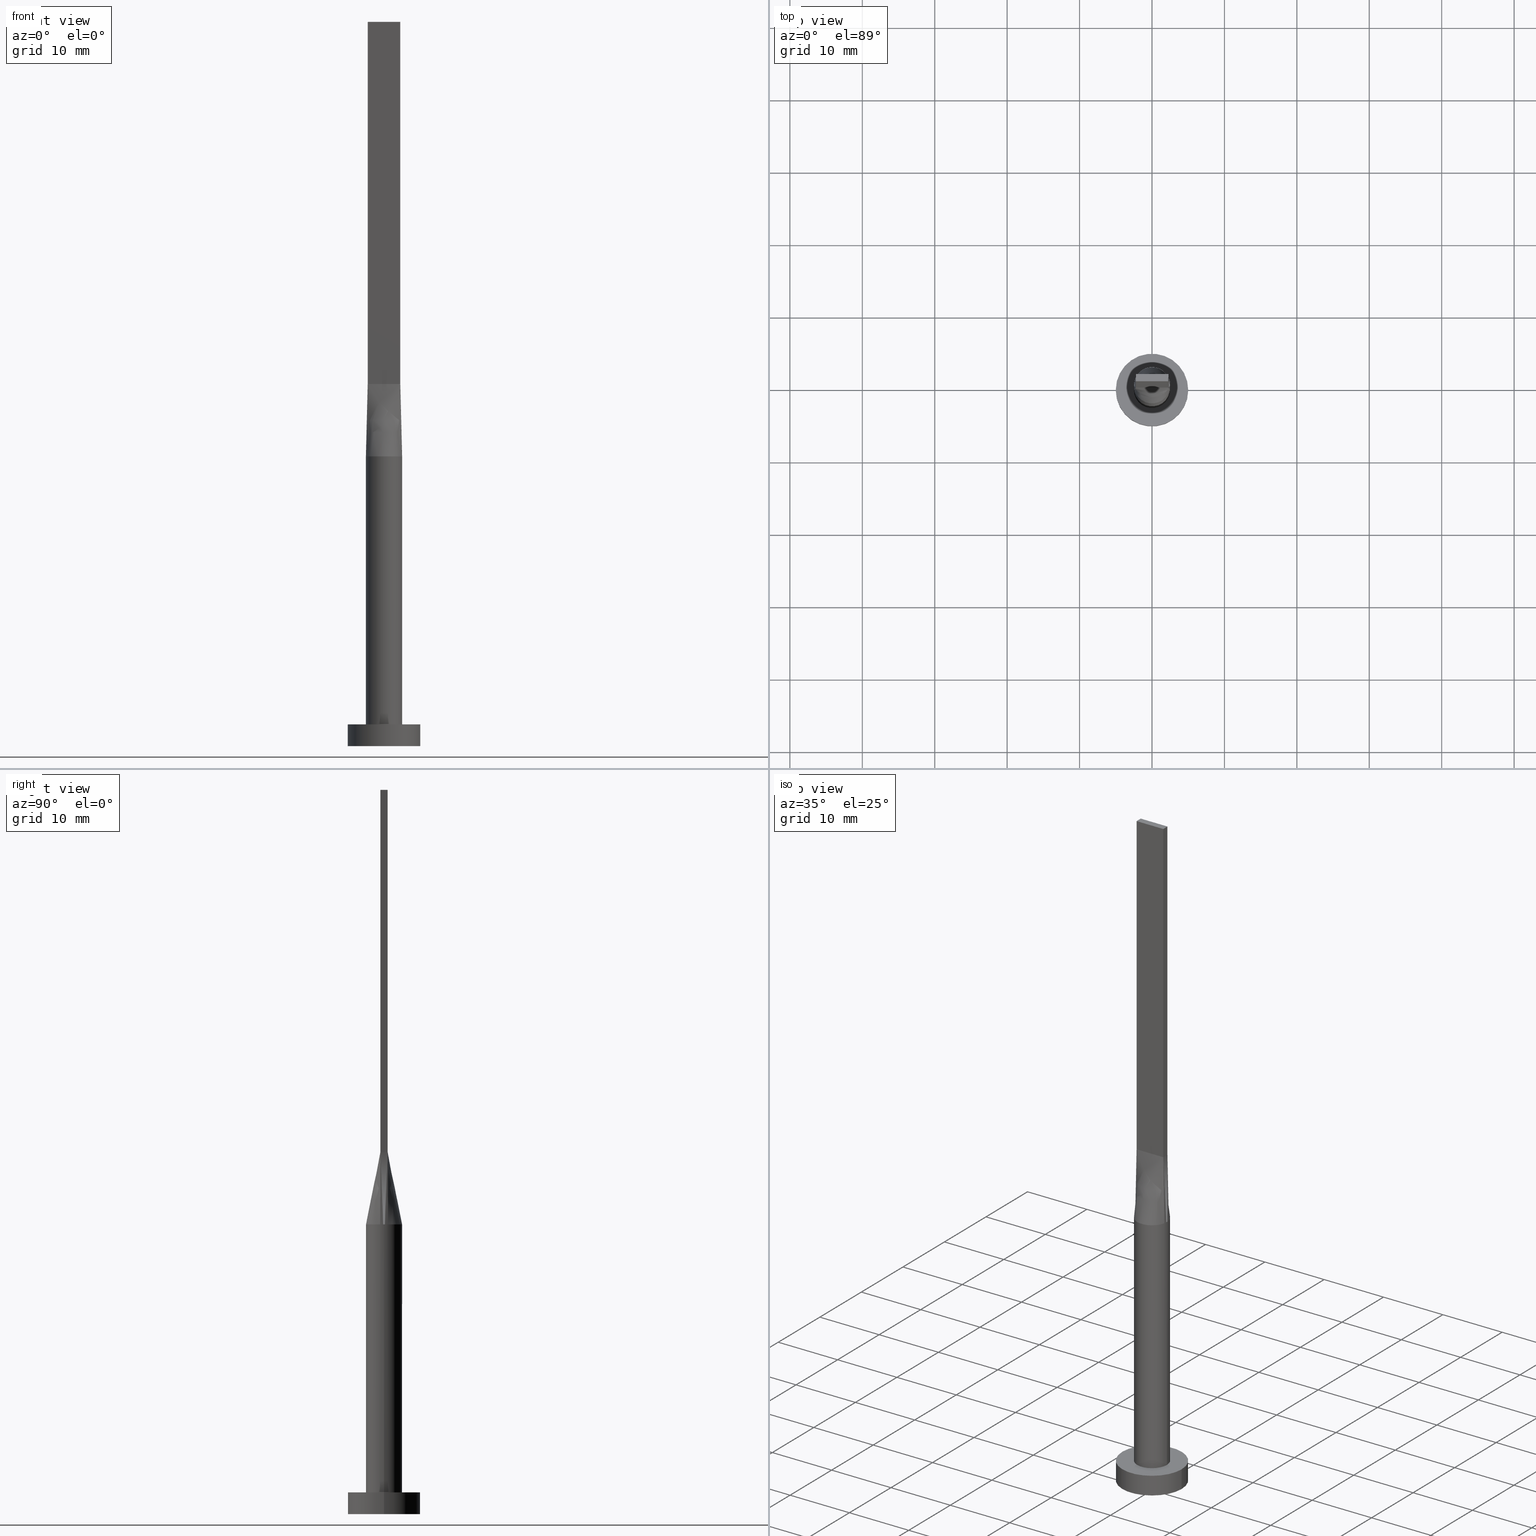
[diagram: canonical four-view strip — front | top / right | iso, engineering-drawing reading convention]
A machine part, canonical four-view strip (front | top / right | iso — engineering-drawing reading convention). The complete STEP part file that produces these views, byte-faithful:
ISO-10303-21;
HEADER;
FILE_DESCRIPTION (( 'STEP AP203' ),
    '1' );
FILE_NAME ('1107.STEP',
    '2023-02-13T13:17:39',
    ( '' ),
    ( '' ),
    'SwSTEP 2.0',
    'SolidWorks 2019',
    '' );
FILE_SCHEMA (( 'CONFIG_CONTROL_DESIGN' ));
ENDSEC;

DATA;
#1 = DIRECTION ( 'NONE',  ( -0.01904314058352514841, 0.004231809018561172135, 0.9998097071888962795 ) ) ;
#2 = DIRECTION ( 'NONE',  ( -1.000000000000000000, 7.228014483236697048E-17, 0.000000000000000000 ) ) ;
#3 = DIRECTION ( 'NONE',  ( 1.000000000000000000, 0.000000000000000000, 0.000000000000000000 ) ) ;
#4 = ORIENTED_EDGE ( 'NONE', *, *, #522, .F. ) ;
#5 = EDGE_CURVE ( 'NONE', #426, #436, #99, .T. ) ;
#6 = EDGE_CURVE ( 'NONE', #551, #323, #314, .T. ) ;
#7 = DIRECTION ( 'NONE',  ( -0.000000000000000000, -0.000000000000000000, -1.000000000000000000 ) ) ;
#8 = CARTESIAN_POINT ( 'NONE',  ( -2.323660390030918066, -0.9543733860570832173, 40.00000000000000711 ) ) ;
#9 = ORIENTED_EDGE ( 'NONE', *, *, #473, .T. ) ;
#10 = CIRCLE ( 'NONE', #514, 2.500000000000000000 ) ;
#11 = CARTESIAN_POINT ( 'NONE',  ( 2.499291179871646396, 0.1829277781556730154, 40.00000000000000000 ) ) ;
#12 = CARTESIAN_POINT ( 'NONE',  ( -2.249999999999999556, 0.5000000000000002220, 50.00000000000000000 ) ) ;
#13 = EDGE_LOOP ( 'NONE', ( #78, #204, #167, #504 ) ) ;
#14 = CARTESIAN_POINT ( 'NONE',  ( 2.440467650459881899, -0.5423261445466410757, 40.00000000000000000 ) ) ;
#15 = CC_DESIGN_DATE_AND_TIME_ASSIGNMENT ( #109, #202, ( #444 ) ) ;
#16 = CARTESIAN_POINT ( 'NONE',  ( 0.7499999999999996669, -0.4999999999999995559, 50.00000000000000000 ) ) ;
#17 = COORDINATED_UNIVERSAL_TIME_OFFSET ( 1, 0, .AHEAD. ) ;
#18 = VERTEX_POINT ( 'NONE', #171 ) ;
#19 = EDGE_LOOP ( 'NONE', ( #349, #4, #380, #216 ) ) ;
#20 = CARTESIAN_POINT ( 'NONE',  ( 0.000000000000000000, 0.000000000000000000, 100.0000000000000000 ) ) ;
#21 = EDGE_LOOP ( 'NONE', ( #367, #250, #253, #161, #186, #300 ) ) ;
#22 = CARTESIAN_POINT ( 'NONE',  ( 0.000000000000000000, 0.000000000000000000, 3.000000000000000000 ) ) ;
#23 = EDGE_CURVE ( 'NONE', #383, #217, #360, .T. ) ;
#24 = CARTESIAN_POINT ( 'NONE',  ( -1.260416918790968843, 2.182794756967428196, 40.00000000000000711 ) ) ;
#25 = LOCAL_TIME ( 14, 17, 39.00000000000000000, #142 ) ;
#26 = EDGE_CURVE ( 'NONE', #323, #475, #43, .T. ) ;
#27 = CARTESIAN_POINT ( 'NONE',  ( -0.3342381693191151526, 2.499999999999999556, 40.00000000000000000 ) ) ;
#28 = LINE ( 'NONE', #351, #153 ) ;
#29 = ORIENTED_EDGE ( 'NONE', *, *, #34, .T. ) ;
#30 = CARTESIAN_POINT ( 'NONE',  ( -1.875000000000000000, 0.5000000000000002220, 50.00000000000000000 ) ) ;
#31 = EDGE_CURVE ( 'NONE', #110, #121, #532, .T. ) ;
#32 = VECTOR ( 'NONE', #51, 1000.000000000000000 ) ;
#33 = EDGE_LOOP ( 'NONE', ( #281, #237, #328, #199, #375, #513 ) ) ;
#34 = EDGE_CURVE ( 'NONE', #217, #242, #560, .T. ) ;
#35 = CARTESIAN_POINT ( 'NONE',  ( 0.000000000000000000, 0.000000000000000000, 40.00000000000000000 ) ) ;
#36 = CARTESIAN_POINT ( 'NONE',  ( -2.479683336734391563, 0.3658555563113465858, 40.00000000000000000 ) ) ;
#37 = AXIS2_PLACEMENT_3D ( 'NONE', #82, #213, #391 ) ;
#38 = CARTESIAN_POINT ( 'NONE',  ( -2.249999999999999556, 0.5000000000000002220, 100.0000000000000000 ) ) ;
#39 = EDGE_CURVE ( 'NONE', #115, #384, #317, .T. ) ;
#40 = FACE_OUTER_BOUND ( 'NONE', #206, .T. ) ;
#41 = CARTESIAN_POINT ( 'NONE',  ( 2.250000000000000000, -0.4999999999999997780, 100.0000000000000000 ) ) ;
#42 = MANIFOLD_SOLID_BREP ( 'P�idat vysunut�m5', #484 ) ;
#43 = LINE ( 'NONE', #225, #396 ) ;
#44 = DATE_TIME_ROLE ( 'creation_date' ) ;
#45 = CC_DESIGN_SECURITY_CLASSIFICATION ( #444, ( #501 ) ) ;
#46 = DIRECTION ( 'NONE',  ( 7.228014483236697048E-17, 1.000000000000000000, -0.000000000000000000 ) ) ;
#47 = EDGE_CURVE ( 'NONE', #407, #217, #193, .T. ) ;
#48 = DIRECTION ( 'NONE',  ( -1.000000000000000000, -0.000000000000000000, -0.000000000000000000 ) ) ;
#49 = PERSON_AND_ORGANIZATION ( #177, #287 ) ;
#50 = CARTESIAN_POINT ( 'NONE',  ( 0.000000000000000000, 0.000000000000000000, 40.00000000000000000 ) ) ;
#51 = DIRECTION ( 'NONE',  ( -0.000000000000000000, -0.000000000000000000, -1.000000000000000000 ) ) ;
#52 = CARTESIAN_POINT ( 'NONE',  ( 0.3749999999999998890, -0.4999999999999995559, 50.00000000000000711 ) ) ;
#53 = ORIENTED_EDGE ( 'NONE', *, *, #522, .T. ) ;
#54 = CARTESIAN_POINT ( 'NONE',  ( 0.000000000000000000, 0.000000000000000000, 40.00000000000000000 ) ) ;
#55 = CARTESIAN_POINT ( 'NONE',  ( 0.000000000000000000, 0.000000000000000000, 3.000000000000000000 ) ) ;
#56 = DIRECTION ( 'NONE',  ( -0.000000000000000000, -0.000000000000000000, -1.000000000000000000 ) ) ;
#57 = ORIENTED_EDGE ( 'NONE', *, *, #293, .F. ) ;
#58 = PRODUCT_DEFINITION ( 'NEZN�M�', '', #501, #336 ) ;
#59 = AXIS2_PLACEMENT_3D ( 'NONE', #116, #156, #63 ) ;
#60 = FACE_OUTER_BOUND ( 'NONE', #510, .T. ) ;
#61 = AXIS2_PLACEMENT_3D ( 'NONE', #151, #462, #3 ) ;
#62 = VERTEX_POINT ( 'NONE', #503 ) ;
#63 = DIRECTION ( 'NONE',  ( 1.000000000000000000, 0.000000000000000000, 0.000000000000000000 ) ) ;
#64 = CARTESIAN_POINT ( 'NONE',  ( 2.440706242928429415, -0.5423794613208688942, 40.00000000000000000 ) ) ;
#65 = DATE_AND_TIME ( #245, #305 ) ;
#66 = ORIENTED_EDGE ( 'NONE', *, *, #423, .F. ) ;
#67 = CARTESIAN_POINT ( 'NONE',  ( 2.250000000000000000, -0.4999999999999997780, 100.0000000000000000 ) ) ;
#68 = CARTESIAN_POINT ( 'NONE',  ( 0.000000000000000000, 0.000000000000000000, 40.00000000000000000 ) ) ;
#69 =( GEOMETRIC_REPRESENTATION_CONTEXT ( 3 ) GLOBAL_UNCERTAINTY_ASSIGNED_CONTEXT ( ( #555 ) ) GLOBAL_UNIT_ASSIGNED_CONTEXT ( ( #448, #95, #442 ) ) REPRESENTATION_CONTEXT ( 'NONE', 'WORKASPACE' ) );
#70 = PLANE ( 'NONE',  #517 ) ;
#71 = EDGE_CURVE ( 'NONE', #383, #551, #286, .T. ) ;
#72 = FACE_OUTER_BOUND ( 'NONE', #124, .T. ) ;
#73 = CARTESIAN_POINT ( 'NONE',  ( 2.396350003401058082, -0.7408555563113468079, 40.00000000000000000 ) ) ;
#74 = ORIENTED_EDGE ( 'NONE', *, *, #544, .T. ) ;
#75 = CARTESIAN_POINT ( 'NONE',  ( -0.3750000000000021649, 0.5000000000000002220, 50.00000000000000000 ) ) ;
#76 = B_SPLINE_SURFACE_WITH_KNOTS ( 'NONE', 3, 1, ( 
 ( #14, #144 ),
 ( #331, #553 ),
 ( #107, #465 ),
 ( #11, #411 ),
 ( #477, #149 ),
 ( #548, #285 ) ),
 .UNSPECIFIED., .F., .F., .F.,
 ( 4, 2, 4 ),
 ( 2, 2 ),
 ( 0.000000000000000000, 0.5000000000000000000, 1.000000000000000000 ),
 ( 0.000000000000000000, 1.000000000000000000 ),
 .UNSPECIFIED. ) ;
#77 = CARTESIAN_POINT ( 'NONE',  ( 1.875000000000000000, -0.4999999999999997780, 50.00000000000000000 ) ) ;
#78 = ORIENTED_EDGE ( 'NONE', *, *, #473, .F. ) ;
#79 = CARTESIAN_POINT ( 'NONE',  ( 2.323660390030917178, -0.9543733860570838834, 40.00000000000000000 ) ) ;
#80 = CIRCLE ( 'NONE', #258, 2.500000000000000000 ) ;
#81 = ORIENTED_EDGE ( 'NONE', *, *, #434, .T. ) ;
#82 = CARTESIAN_POINT ( 'NONE',  ( 0.000000000000000000, 0.000000000000000000, 40.00000000000000000 ) ) ;
#83 = CARTESIAN_POINT ( 'NONE',  ( 2.440467650459881899, 0.5423261445466406316, 40.00000000000000000 ) ) ;
#84 = ADVANCED_FACE ( 'NONE', ( #290 ), #335, .T. ) ;
#85 = APPLICATION_PROTOCOL_DEFINITION ( 'international standard', 'config_control_design', 1994, #112 ) ;
#86 = CARTESIAN_POINT ( 'NONE',  ( 0.000000000000000000, 0.000000000000000000, 0.000000000000000000 ) ) ;
#87 = CIRCLE ( 'NONE', #236, 5.000000000000000000 ) ;
#88 = CARTESIAN_POINT ( 'NONE',  ( -2.500000000000000000, 0.000000000000000000, 3.000000000000000000 ) ) ;
#89 = VECTOR ( 'NONE', #452, 1000.000000000000000 ) ;
#90 = PERSON_AND_ORGANIZATION ( #177, #287 ) ;
#91 = LINE ( 'NONE', #443, #162 ) ;
#92 = CARTESIAN_POINT ( 'NONE',  ( 0.000000000000000000, 0.000000000000000000, 0.000000000000000000 ) ) ;
#93 = LINE ( 'NONE', #416, #111 ) ;
#94 = CARTESIAN_POINT ( 'NONE',  ( -0.3750000000000002220, -0.4999999999999995559, 50.00000000000000000 ) ) ;
#95 =( NAMED_UNIT ( * ) PLANE_ANGLE_UNIT ( ) SI_UNIT ( $, .RADIAN. ) );
#96 = AXIS2_PLACEMENT_3D ( 'NONE', #35, #273, #174 ) ;
#97 = CARTESIAN_POINT ( 'NONE',  ( 0.000000000000000000, 0.000000000000000000, 0.000000000000000000 ) ) ;
#98 = CARTESIAN_POINT ( 'NONE',  ( -2.440694335308545071, 0.5423767520433731004, 40.00000000000000000 ) ) ;
#99 = CIRCLE ( 'NONE', #122, 2.500000000000000000 ) ;
#100 = CARTESIAN_POINT ( 'NONE',  ( -0.6674771052374477431, -2.430579781493059865, 40.00000000000001421 ) ) ;
#101 = APPROVAL_DATE_TIME ( #65, #304 ) ;
#102 = EDGE_LOOP ( 'NONE', ( #340, #229 ) ) ;
#103 = DIRECTION ( 'NONE',  ( 0.000000000000000000, -0.000000000000000000, -1.000000000000000000 ) ) ;
#104 = CARTESIAN_POINT ( 'NONE',  ( 1.499999999999999778, -0.4999999999999997780, 50.00000000000000000 ) ) ;
#105 = ADVANCED_FACE ( 'NONE', ( #157 ), #546, .T. ) ;
#106 = ORIENTED_EDGE ( 'NONE', *, *, #364, .T. ) ;
#107 = CARTESIAN_POINT ( 'NONE',  ( 2.499291179871646396, -0.1829277781556736815, 40.00000000000000000 ) ) ;
#108 = CARTESIAN_POINT ( 'NONE',  ( 2.249999999999999556, 0.5000000000000002220, 50.00000000000000000 ) ) ;
#109 = DATE_AND_TIME ( #190, #379 ) ;
#110 = VERTEX_POINT ( 'NONE', #64 ) ;
#111 = VECTOR ( 'NONE', #376, 1000.000000000000000 ) ;
#112 = APPLICATION_CONTEXT ( 'configuration controlled 3d designs of mechanical parts and assemblies' ) ;
#113 = DIRECTION ( 'NONE',  ( -1.000000000000000000, 0.000000000000000000, 0.000000000000000000 ) ) ;
#114 = AXIS2_PLACEMENT_3D ( 'NONE', #189, #56, #113 ) ;
#115 = VERTEX_POINT ( 'NONE', #322 ) ;
#116 = CARTESIAN_POINT ( 'NONE',  ( 0.000000000000000000, 0.000000000000000000, 3.000000000000000000 ) ) ;
#117 = SHAPE_DEFINITION_REPRESENTATION ( #309, #346 ) ;
#118 = ORIENTED_EDGE ( 'NONE', *, *, #5, .F. ) ;
#119 = CYLINDRICAL_SURFACE ( 'NONE', #146, 2.500000000000000000 ) ;
#120 = ADVANCED_FACE ( 'NONE', ( #500 ), #578, .T. ) ;
#121 = VERTEX_POINT ( 'NONE', #566 ) ;
#122 = AXIS2_PLACEMENT_3D ( 'NONE', #307, #576, #133 ) ;
#123 = CARTESIAN_POINT ( 'NONE',  ( 2.323660390030918954, 0.9543733860570833283, 40.00000000000000711 ) ) ;
#124 = EDGE_LOOP ( 'NONE', ( #259, #74, #291, #386, #377 ) ) ;
#125 = CC_DESIGN_PERSON_AND_ORGANIZATION_ASSIGNMENT ( #183, #272, ( #501 ) ) ;
#126 = CARTESIAN_POINT ( 'NONE',  ( -2.396350003401058082, 0.7408555563113466969, 40.00000000000000000 ) ) ;
#127 = ADVANCED_FACE ( 'NONE', ( #210 ), #382, .T. ) ;
#128 = FACE_OUTER_BOUND ( 'NONE', #21, .T. ) ;
#129 = DIRECTION ( 'NONE',  ( 1.000000000000000000, -7.228014483236697048E-17, 0.000000000000000000 ) ) ;
#130 = CARTESIAN_POINT ( 'NONE',  ( -2.249999999999999556, 0.5000000000000002220, 50.00000000000000000 ) ) ;
#131 = ADVANCED_FACE ( 'NONE', ( #343, #431 ), #70, .T. ) ;
#132 = AXIS2_PLACEMENT_3D ( 'NONE', #455, #46, #2 ) ;
#133 = DIRECTION ( 'NONE',  ( 1.000000000000000000, 0.000000000000000000, 0.000000000000000000 ) ) ;
#134 = CALENDAR_DATE ( 2023, 13, 2 ) ;
#135 = FACE_OUTER_BOUND ( 'NONE', #102, .T. ) ;
#136 = CARTESIAN_POINT ( 'NONE',  ( -2.479683336734392007, -0.3658555563113460307, 40.00000000000000000 ) ) ;
#137 = SECURITY_CLASSIFICATION_LEVEL ( 'unclassified' ) ;
#138 = DIRECTION ( 'NONE',  ( -0.000000000000000000, -0.000000000000000000, -1.000000000000000000 ) ) ;
#139 = EDGE_CURVE ( 'NONE', #18, #527, #268, .T. ) ;
#140 = LINE ( 'NONE', #321, #32 ) ;
#141 = DIRECTION ( 'NONE',  ( 1.000000000000000000, -4.440892098500626162E-15, 0.000000000000000000 ) ) ;
#142 = COORDINATED_UNIVERSAL_TIME_OFFSET ( 1, 0, .AHEAD. ) ;
#143 = CARTESIAN_POINT ( 'NONE',  ( -5.000000000000000000, 0.000000000000000000, 0.000000000000000000 ) ) ;
#144 = CARTESIAN_POINT ( 'NONE',  ( 2.250000000000000000, -0.4999999999999997780, 50.00000000000000000 ) ) ;
#145 = CARTESIAN_POINT ( 'NONE',  ( -2.250000000000000000, -0.4999999999999994449, 50.00000000000000000 ) ) ;
#146 = AXIS2_PLACEMENT_3D ( 'NONE', #68, #339, #159 ) ;
#147 = ORIENTED_EDGE ( 'NONE', *, *, #6, .T. ) ;
#148 = DIRECTION ( 'NONE',  ( -0.000000000000000000, -0.000000000000000000, -1.000000000000000000 ) ) ;
#149 = CARTESIAN_POINT ( 'NONE',  ( 2.249999999999999556, 0.3333333333333333703, 50.00000000000000000 ) ) ;
#150 = ADVANCED_FACE ( 'NONE', ( #40 ), #490, .T. ) ;
#151 = CARTESIAN_POINT ( 'NONE',  ( 0.000000000000000000, 0.000000000000000000, 0.000000000000000000 ) ) ;
#152 = ORIENTED_EDGE ( 'NONE', *, *, #26, .T. ) ;
#153 = VECTOR ( 'NONE', #306, 1000.000000000000000 ) ;
#154 = DIRECTION ( 'NONE',  ( 0.000000000000000000, 0.000000000000000000, 1.000000000000000000 ) ) ;
#155 = CARTESIAN_POINT ( 'NONE',  ( 0.000000000000000000, 0.000000000000000000, 3.000000000000000000 ) ) ;
#156 = DIRECTION ( 'NONE',  ( 0.000000000000000000, 0.000000000000000000, 1.000000000000000000 ) ) ;
#157 = FACE_OUTER_BOUND ( 'NONE', #13, .T. ) ;
#158 = ORIENTED_EDGE ( 'NONE', *, *, #342, .T. ) ;
#159 = DIRECTION ( 'NONE',  ( -1.000000000000000000, 0.000000000000000000, 0.000000000000000000 ) ) ;
#160 = VECTOR ( 'NONE', #138, 1000.000000000000000 ) ;
#161 = ORIENTED_EDGE ( 'NONE', *, *, #233, .F. ) ;
#162 = VECTOR ( 'NONE', #148, 1000.000000000000000 ) ;
#163 = EDGE_CURVE ( 'NONE', #121, #436, #28, .T. ) ;
#164 = ORIENTED_EDGE ( 'NONE', *, *, #203, .F. ) ;
#165 = CARTESIAN_POINT ( 'NONE',  ( 1.312499999999998224, 0.5000000000000002220, 50.00000000000000000 ) ) ;
#166 = CARTESIAN_POINT ( 'NONE',  ( -2.250000000000000000, -0.3333333333333326487, 50.00000000000000000 ) ) ;
#167 = ORIENTED_EDGE ( 'NONE', *, *, #39, .T. ) ;
#168 = CARTESIAN_POINT ( 'NONE',  ( -2.323660390030918510, 0.9543733860570832173, 40.00000000000000000 ) ) ;
#169 = AXIS2_PLACEMENT_3D ( 'NONE', #54, #421, #243 ) ;
#170 = LINE ( 'NONE', #531, #549 ) ;
#171 = CARTESIAN_POINT ( 'NONE',  ( -2.250000000000000000, -0.4999999999999994449, 50.00000000000000000 ) ) ;
#172 = CARTESIAN_POINT ( 'NONE',  ( -2.440467650459882343, 0.5423261445466395214, 40.00000000000000000 ) ) ;
#173 = APPROVAL_ROLE ( '' ) ;
#174 = DIRECTION ( 'NONE',  ( 1.000000000000000000, 0.000000000000000000, 0.000000000000000000 ) ) ;
#175 = DATE_AND_TIME ( #395, #224 ) ;
#176 = CARTESIAN_POINT ( 'NONE',  ( 2.249999999999999556, 0.5000000000000002220, 100.0000000000000000 ) ) ;
#177 = PERSON ( 'NEUR�EN�', 'NEUR�EN�', 'NEUR�EN�', ('NEUR�EN�'), ('NEUR�EN�'), ('NEUR�EN�') ) ;
#178 = CARTESIAN_POINT ( 'NONE',  ( -2.249999999999999556, 0.3333333333333337034, 50.00000000000000000 ) ) ;
#179 = ADVANCED_FACE ( 'NONE', ( #128 ), #483, .T. ) ;
#180 = VECTOR ( 'NONE', #1, 1000.000000000000000 ) ;
#181 = APPROVAL_STATUS ( 'not_yet_approved' ) ;
#182 = CARTESIAN_POINT ( 'NONE',  ( 2.249999999999999556, 0.5000000000000002220, 100.0000000000000000 ) ) ;
#183 = PERSON_AND_ORGANIZATION ( #177, #287 ) ;
#184 = CARTESIAN_POINT ( 'NONE',  ( 2.440676307083422980, 0.5423728264510006003, 40.00000000000000000 ) ) ;
#185 = DIRECTION ( 'NONE',  ( -4.336808689942017736E-16, 1.000000000000000000, -0.000000000000000000 ) ) ;
#186 = ORIENTED_EDGE ( 'NONE', *, *, #434, .F. ) ;
#187 = LINE ( 'NONE', #41, #303 ) ;
#188 = CARTESIAN_POINT ( 'NONE',  ( 2.093723281432890104, 1.388001797188529007, 39.99999999999999289 ) ) ;
#189 = CARTESIAN_POINT ( 'NONE',  ( 0.000000000000000000, 0.000000000000000000, 3.000000000000000000 ) ) ;
#190 = CALENDAR_DATE ( 2023, 13, 2 ) ;
#191 = VECTOR ( 'NONE', #341, 1000.000000000000000 ) ;
#192 = ORIENTED_EDGE ( 'NONE', *, *, #293, .T. ) ;
#193 = LINE ( 'NONE', #108, #470 ) ;
#194 = COORDINATED_UNIVERSAL_TIME_OFFSET ( 1, 0, .AHEAD. ) ;
#195 = ORIENTED_EDGE ( 'NONE', *, *, #139, .F. ) ;
#196 = DIRECTION ( 'NONE',  ( -0.01904314058352519351, -0.004231809018561117491, 0.9998097071888962795 ) ) ;
#197 = CARTESIAN_POINT ( 'NONE',  ( 0.3342381693191144310, -2.500000000000000444, 39.99999999999998579 ) ) ;
#198 = APPROVAL_STATUS ( 'not_yet_approved' ) ;
#199 = ORIENTED_EDGE ( 'NONE', *, *, #508, .F. ) ;
#200 = FACE_OUTER_BOUND ( 'NONE', #524, .T. ) ;
#201 = CARTESIAN_POINT ( 'NONE',  ( 2.249999999999999556, 0.5000000000000002220, 100.0000000000000000 ) ) ;
#202 = DATE_TIME_ROLE ( 'classification_date' ) ;
#203 = EDGE_CURVE ( 'NONE', #491, #217, #170, .T. ) ;
#204 = ORIENTED_EDGE ( 'NONE', *, *, #424, .T. ) ;
#205 = APPROVAL_PERSON_ORGANIZATION ( #488, #350, #534 ) ;
#206 = EDGE_LOOP ( 'NONE', ( #81, #232, #195, #561, #408 ) ) ;
#207 = CARTESIAN_POINT ( 'NONE',  ( -0.3342381693191151526, 2.499999999999999556, 40.00000000000000000 ) ) ;
#208 = ADVANCED_FACE ( 'NONE', ( #72 ), #76, .T. ) ;
#209 = CARTESIAN_POINT ( 'NONE',  ( 1.935644909179608186, 1.608159499248285051, 39.99999999999998579 ) ) ;
#210 = FACE_OUTER_BOUND ( 'NONE', #468, .T. ) ;
#211 = CARTESIAN_POINT ( 'NONE',  ( -0.9375000000000015543, 0.5000000000000002220, 50.00000000000000000 ) ) ;
#212 = CARTESIAN_POINT ( 'NONE',  ( -0.1875000000000020539, 0.5000000000000002220, 50.00000000000000000 ) ) ;
#213 = DIRECTION ( 'NONE',  ( -0.000000000000000000, -0.000000000000000000, -1.000000000000000000 ) ) ;
#214 = EDGE_CURVE ( 'NONE', #547, #384, #368, .T. ) ;
#215 = CARTESIAN_POINT ( 'NONE',  ( 1.499999999999998446, 0.5000000000000002220, 50.00000000000000000 ) ) ;
#216 = ORIENTED_EDGE ( 'NONE', *, *, #430, .T. ) ;
#217 = VERTEX_POINT ( 'NONE', #499 ) ;
#218 = PERSON_AND_ORGANIZATION ( #177, #287 ) ;
#219 = ADVANCED_FACE ( 'NONE', ( #60 ), #329, .F. ) ;
#220 = CARTESIAN_POINT ( 'NONE',  ( 2.249999999999999556, 0.5000000000000002220, 100.0000000000000000 ) ) ;
#221 = DIRECTION ( 'NONE',  ( 0.000000000000000000, 0.000000000000000000, 1.000000000000000000 ) ) ;
#222 = DIRECTION ( 'NONE',  ( 1.000000000000000000, -4.336808689942020201E-16, 0.000000000000000000 ) ) ;
#223 = CARTESIAN_POINT ( 'NONE',  ( -2.250000000000000000, -0.4999999999999993339, 50.00000000000000000 ) ) ;
#224 = LOCAL_TIME ( 14, 17, 39.00000000000000000, #278 ) ;
#225 = CARTESIAN_POINT ( 'NONE',  ( -2.250000000000000000, -0.4999999999999994449, 100.0000000000000000 ) ) ;
#226 = PERSON_AND_ORGANIZATION_ROLE ( 'design_owner' ) ;
#227 = EDGE_LOOP ( 'NONE', ( #372, #518, #247, #463 ) ) ;
#228 = CARTESIAN_POINT ( 'NONE',  ( -5.000000000000000000, 0.000000000000000000, 3.000000000000000000 ) ) ;
#229 = ORIENTED_EDGE ( 'NONE', *, *, #39, .F. ) ;
#230 = CARTESIAN_POINT ( 'NONE',  ( 2.250000000000000000, -0.4999999999999997780, 50.00000000000000000 ) ) ;
#231 = CARTESIAN_POINT ( 'NONE',  ( -2.440467650459882343, -0.5423261445466400765, 40.00000000000000000 ) ) ;
#232 = ORIENTED_EDGE ( 'NONE', *, *, #508, .T. ) ;
#233 = EDGE_CURVE ( 'NONE', #62, #426, #521, .T. ) ;
#234 = EDGE_CURVE ( 'NONE', #323, #18, #405, .T. ) ;
#235 = CARTESIAN_POINT ( 'NONE',  ( -1.875000000000000444, -0.4999999999999995559, 50.00000000000000000 ) ) ;
#236 = AXIS2_PLACEMENT_3D ( 'NONE', #282, #238, #476 ) ;
#237 = ORIENTED_EDGE ( 'NONE', *, *, #31, .F. ) ;
#238 = DIRECTION ( 'NONE',  ( 0.000000000000000000, 0.000000000000000000, 1.000000000000000000 ) ) ;
#239 = DIRECTION ( 'NONE',  ( -0.000000000000000000, -0.000000000000000000, -1.000000000000000000 ) ) ;
#240 = VECTOR ( 'NONE', #48, 1000.000000000000000 ) ;
#241 = CARTESIAN_POINT ( 'NONE',  ( -0.9375000000000006661, -0.4999999999999995559, 50.00000000000000000 ) ) ;
#242 = VERTEX_POINT ( 'NONE', #401 ) ;
#243 = DIRECTION ( 'NONE',  ( 1.000000000000000000, 0.000000000000000000, 0.000000000000000000 ) ) ;
#244 = CARTESIAN_POINT ( 'NONE',  ( -1.935644909179609297, -1.608159499248284829, 40.00000000000000000 ) ) ;
#245 = CALENDAR_DATE ( 2023, 13, 2 ) ;
#246 = CARTESIAN_POINT ( 'NONE',  ( -2.250000000000000000, -0.4999999999999994449, 50.00000000000000000 ) ) ;
#247 = ORIENTED_EDGE ( 'NONE', *, *, #565, .F. ) ;
#248 = CARTESIAN_POINT ( 'NONE',  ( 2.440676307083422980, 0.5423728264510006003, 40.00000000000000000 ) ) ;
#249 = CIRCLE ( 'NONE', #96, 2.500000000000000000 ) ;
#250 = ORIENTED_EDGE ( 'NONE', *, *, #163, .T. ) ;
#251 = CARTESIAN_POINT ( 'NONE',  ( 0.9374999999999978906, 0.5000000000000002220, 50.00000000000000000 ) ) ;
#252 = CARTESIAN_POINT ( 'NONE',  ( 2.250000000000000000, -0.4999999999999997780, 50.00000000000000000 ) ) ;
#253 = ORIENTED_EDGE ( 'NONE', *, *, #261, .T. ) ;
#254 = CARTESIAN_POINT ( 'NONE',  ( 1.260416918790968843, 2.182794756967427752, 40.00000000000000000 ) ) ;
#255 = DIRECTION ( 'NONE',  ( 1.000000000000000000, 0.000000000000000000, -0.000000000000000000 ) ) ;
#256 = ORIENTED_EDGE ( 'NONE', *, *, #364, .F. ) ;
#257 = CARTESIAN_POINT ( 'NONE',  ( -0.7500000000000019984, 0.5000000000000002220, 50.00000000000000000 ) ) ;
#258 = AXIS2_PLACEMENT_3D ( 'NONE', #50, #579, #493 ) ;
#259 = ORIENTED_EDGE ( 'NONE', *, *, #31, .T. ) ;
#260 = VECTOR ( 'NONE', #451, 1000.000000000000000 ) ;
#261 = EDGE_CURVE ( 'NONE', #436, #426, #581, .T. ) ;
#262 = ORIENTED_EDGE ( 'NONE', *, *, #26, .F. ) ;
#263 = CARTESIAN_POINT ( 'NONE',  ( -1.312500000000000888, 0.5000000000000002220, 50.00000000000000000 ) ) ;
#264 = EDGE_LOOP ( 'NONE', ( #352, #158, #311, #164 ) ) ;
#265 = PERSON_AND_ORGANIZATION ( #177, #287 ) ;
#266 = DIRECTION ( 'NONE',  ( 1.000000000000000000, 0.000000000000000000, 0.000000000000000000 ) ) ;
#267 = VECTOR ( 'NONE', #485, 1000.000000000000000 ) ;
#268 = LINE ( 'NONE', #313, #260 ) ;
#269 = EDGE_CURVE ( 'NONE', #242, #18, #93, .T. ) ;
#270 = DIRECTION ( 'NONE',  ( 0.000000000000000000, 0.000000000000000000, 1.000000000000000000 ) ) ;
#271 = CARTESIAN_POINT ( 'NONE',  ( -2.249999999999999556, 0.5000000000000002220, 100.0000000000000000 ) ) ;
#272 = PERSON_AND_ORGANIZATION_ROLE ( 'design_supplier' ) ;
#273 = DIRECTION ( 'NONE',  ( 0.000000000000000000, 0.000000000000000000, 1.000000000000000000 ) ) ;
#274 = PERSON_AND_ORGANIZATION_ROLE ( 'classification_officer' ) ;
#275 = FACE_OUTER_BOUND ( 'NONE', #418, .T. ) ;
#276 = APPROVAL_PERSON_ORGANIZATION ( #474, #304, #333 ) ;
#277 = CARTESIAN_POINT ( 'NONE',  ( -0.3342381693191159853, -2.499999999999999556, 40.00000000000000000 ) ) ;
#278 = COORDINATED_UNIVERSAL_TIME_OFFSET ( 1, 0, .AHEAD. ) ;
#279 = CARTESIAN_POINT ( 'NONE',  ( -2.500000000000000000, 0.000000000000000000, 40.00000000000000000 ) ) ;
#280 = CARTESIAN_POINT ( 'NONE',  ( 0.1875000000000000555, -0.4999999999999995559, 50.00000000000000711 ) ) ;
#281 = ORIENTED_EDGE ( 'NONE', *, *, #163, .F. ) ;
#282 = CARTESIAN_POINT ( 'NONE',  ( 0.000000000000000000, 0.000000000000000000, 3.000000000000000000 ) ) ;
#283 = DIRECTION ( 'NONE',  ( -1.000000000000000000, 0.000000000000000000, 0.000000000000000000 ) ) ;
#284 = EDGE_LOOP ( 'NONE', ( #118, #288 ) ) ;
#285 = CARTESIAN_POINT ( 'NONE',  ( 2.249999999999999556, 0.5000000000000002220, 50.00000000000000000 ) ) ;
#286 = LINE ( 'NONE', #201, #425 ) ;
#287 = ORGANIZATION ( 'NEUR�EN�', 'NEUR�EN�', '' ) ;
#288 = ORIENTED_EDGE ( 'NONE', *, *, #261, .F. ) ;
#289 = APPROVAL ( #456, 'NEUR�EN�' ) ;
#290 = FACE_OUTER_BOUND ( 'NONE', #19, .T. ) ;
#291 = ORIENTED_EDGE ( 'NONE', *, *, #203, .T. ) ;
#292 = DIRECTION ( 'NONE',  ( 4.336808689942017736E-16, -1.000000000000000000, 0.000000000000000000 ) ) ;
#293 = EDGE_CURVE ( 'NONE', #475, #407, #140, .T. ) ;
#294 = VERTEX_POINT ( 'NONE', #98 ) ;
#295 = FACE_OUTER_BOUND ( 'NONE', #33, .T. ) ;
#296 = DIRECTION ( 'NONE',  ( 0.000000000000000000, 0.000000000000000000, 1.000000000000000000 ) ) ;
#297 = VECTOR ( 'NONE', #239, 1000.000000000000000 ) ;
#298 = ADVANCED_FACE ( 'NONE', ( #275 ), #502, .F. ) ;
#299 = CARTESIAN_POINT ( 'NONE',  ( 0.1874999999999980016, 0.5000000000000002220, 50.00000000000000000 ) ) ;
#300 = ORIENTED_EDGE ( 'NONE', *, *, #310, .F. ) ;
#301 = ORIENTED_EDGE ( 'NONE', *, *, #234, .F. ) ;
#302 = CARTESIAN_POINT ( 'NONE',  ( 2.396350003401058526, 0.7408555563113465858, 40.00000000000000000 ) ) ;
#303 = VECTOR ( 'NONE', #543, 1000.000000000000000 ) ;
#304 = APPROVAL ( #198, 'NEUR�EN�' ) ;
#305 = LOCAL_TIME ( 14, 17, 39.00000000000000000, #194 ) ;
#306 = DIRECTION ( 'NONE',  ( -0.000000000000000000, -0.000000000000000000, -1.000000000000000000 ) ) ;
#307 = CARTESIAN_POINT ( 'NONE',  ( 0.000000000000000000, 0.000000000000000000, 3.000000000000000000 ) ) ;
#308 = CARTESIAN_POINT ( 'NONE',  ( 0.3342381693191150416, 2.499999999999999556, 39.99999999999999289 ) ) ;
#309 = PRODUCT_DEFINITION_SHAPE ( 'NONE', 'NONE',  #58 ) ;
#310 = EDGE_CURVE ( 'NONE', #491, #294, #478, .T. ) ;
#311 = ORIENTED_EDGE ( 'NONE', *, *, #34, .F. ) ;
#312 = CARTESIAN_POINT ( 'NONE',  ( -2.249999999999999556, 0.5000000000000002220, 100.0000000000000000 ) ) ;
#313 = CARTESIAN_POINT ( 'NONE',  ( -2.345233825229941171, -0.5211630722733197052, 45.00000000000000000 ) ) ;
#314 = LINE ( 'NONE', #271, #347 ) ;
#315 = DATE_AND_TIME ( #134, #393 ) ;
#316 = CARTESIAN_POINT ( 'NONE',  ( -2.345233825229940727, 0.5211630722733198162, 45.00000000000000000 ) ) ;
#317 = CIRCLE ( 'NONE', #61, 5.000000000000000000 ) ;
#318 = CARTESIAN_POINT ( 'NONE',  ( -2.440467650459882343, -0.5423261445466400765, 40.00000000000000000 ) ) ;
#319 = PERSON_AND_ORGANIZATION ( #177, #287 ) ;
#320 = DIRECTION ( 'NONE',  ( 0.000000000000000000, 0.000000000000000000, 1.000000000000000000 ) ) ;
#321 = CARTESIAN_POINT ( 'NONE',  ( 2.250000000000000000, -0.4999999999999997780, 100.0000000000000000 ) ) ;
#322 = CARTESIAN_POINT ( 'NONE',  ( 5.000000000000000000, 6.123233995736766282E-16, 0.000000000000000000 ) ) ;
#323 = VERTEX_POINT ( 'NONE', #486 ) ;
#324 = PLANE ( 'NONE',  #559 ) ;
#325 = CARTESIAN_POINT ( 'NONE',  ( 2.323660390030918954, 0.9543733860570833283, 40.00000000000000711 ) ) ;
#326 = CIRCLE ( 'NONE', #169, 2.500000000000000000 ) ;
#327 = CARTESIAN_POINT ( 'NONE',  ( -1.500000000000000444, -0.4999999999999995559, 50.00000000000000000 ) ) ;
#328 = ORIENTED_EDGE ( 'NONE', *, *, #373, .F. ) ;
#329 = PLANE ( 'NONE',  #369 ) ;
#330 = DIRECTION ( 'NONE',  ( -0.000000000000000000, -0.000000000000000000, -1.000000000000000000 ) ) ;
#331 = CARTESIAN_POINT ( 'NONE',  ( 2.479683336734391563, -0.3658555563113470299, 40.00000000000000000 ) ) ;
#332 = CARTESIAN_POINT ( 'NONE',  ( -2.396350003401058970, -0.7408555563113458087, 39.99999999999999289 ) ) ;
#333 = APPROVAL_ROLE ( '' ) ;
#334 = ADVANCED_FACE ( 'NONE', ( #480 ), #388, .T. ) ;
#335 = CYLINDRICAL_SURFACE ( 'NONE', #114, 5.000000000000000000 ) ;
#336 = DESIGN_CONTEXT ( 'detailed design', #371, 'design' ) ;
#337 = AXIS2_PLACEMENT_3D ( 'NONE', #86, #270, #266 ) ;
#338 = ORIENTED_EDGE ( 'NONE', *, *, #234, .T. ) ;
#339 = DIRECTION ( 'NONE',  ( -0.000000000000000000, -0.000000000000000000, -1.000000000000000000 ) ) ;
#340 = ORIENTED_EDGE ( 'NONE', *, *, #430, .F. ) ;
#341 = DIRECTION ( 'NONE',  ( -0.000000000000000000, -0.000000000000000000, -1.000000000000000000 ) ) ;
#342 = EDGE_CURVE ( 'NONE', #294, #242, #454, .T. ) ;
#343 = FACE_BOUND ( 'NONE', #284, .T. ) ;
#344 = AXIS2_PLACEMENT_3D ( 'NONE', #92, #221, #397 ) ;
#345 = CARTESIAN_POINT ( 'NONE',  ( 1.260416918790968843, 2.182794756967427752, 40.00000000000000000 ) ) ;
#346 = ADVANCED_BREP_SHAPE_REPRESENTATION ( '1107', ( #42, #344 ), #69 ) ;
#347 = VECTOR ( 'NONE', #447, 1000.000000000000000 ) ;
#348 = CARTESIAN_POINT ( 'NONE',  ( 1.519400572660313031, 2.006070808634367708, 39.99999999999998579 ) ) ;
#349 = ORIENTED_EDGE ( 'NONE', *, *, #424, .F. ) ;
#350 = APPROVAL ( #181, 'NEUR�EN�' ) ;
#351 = CARTESIAN_POINT ( 'NONE',  ( 2.500000000000000000, 3.061616997868383141E-16, 40.00000000000000000 ) ) ;
#352 = ORIENTED_EDGE ( 'NONE', *, *, #310, .T. ) ;
#353 = CARTESIAN_POINT ( 'NONE',  ( -2.396350003401058082, 0.7408555563113466969, 40.00000000000000000 ) ) ;
#354 = VECTOR ( 'NONE', #365, 1000.000000000000000 ) ;
#355 = CARTESIAN_POINT ( 'NONE',  ( -2.249999999999999556, 0.1666666666666671570, 50.00000000000000000 ) ) ;
#356 = CARTESIAN_POINT ( 'NONE',  ( 0.6674771052374470770, 2.430579781493058977, 40.00000000000000000 ) ) ;
#357 = MECHANICAL_CONTEXT ( 'NONE', #112, 'mechanical' ) ;
#358 = CARTESIAN_POINT ( 'NONE',  ( 2.500000000000000000, 3.061616997868383141E-16, 3.000000000000000000 ) ) ;
#359 = CC_DESIGN_APPROVAL ( #350, ( #58 ) ) ;
#360 = LINE ( 'NONE', #220, #89 ) ;
#361 = CALENDAR_DATE ( 2023, 13, 2 ) ;
#362 = CARTESIAN_POINT ( 'NONE',  ( -2.250000000000000000, -0.4999999999999994449, 100.0000000000000000 ) ) ;
#363 = DIRECTION ( 'NONE',  ( 0.000000000000000000, 0.000000000000000000, 1.000000000000000000 ) ) ;
#364 = EDGE_CURVE ( 'NONE', #551, #242, #537, .T. ) ;
#365 = DIRECTION ( 'NONE',  ( 0.01904314058352523514, -0.004231809018561030755, 0.9998097071888962795 ) ) ;
#366 = CARTESIAN_POINT ( 'NONE',  ( -2.062500000000000000, -0.4999999999999995559, 50.00000000000000000 ) ) ;
#367 = ORIENTED_EDGE ( 'NONE', *, *, #544, .F. ) ;
#368 = LINE ( 'NONE', #228, #400 ) ;
#369 = AXIS2_PLACEMENT_3D ( 'NONE', #182, #461, #103 ) ;
#370 = CARTESIAN_POINT ( 'NONE',  ( 1.260416918790968399, -2.182794756967428640, 39.99999999999999289 ) ) ;
#371 = APPLICATION_CONTEXT ( 'configuration controlled 3d designs of mechanical parts and assemblies' ) ;
#372 = ORIENTED_EDGE ( 'NONE', *, *, #373, .T. ) ;
#373 = EDGE_CURVE ( 'NONE', #527, #110, #80, .T. ) ;
#374 = CARTESIAN_POINT ( 'NONE',  ( -1.312500000000000444, -0.4999999999999995559, 50.00000000000000000 ) ) ;
#375 = ORIENTED_EDGE ( 'NONE', *, *, #233, .T. ) ;
#376 = DIRECTION ( 'NONE',  ( -4.336808689942019708E-16, -1.000000000000000000, 0.000000000000000000 ) ) ;
#377 = ORIENTED_EDGE ( 'NONE', *, *, #572, .F. ) ;
#378 = PLANE ( 'NONE',  #466 ) ;
#379 = LOCAL_TIME ( 14, 17, 39.00000000000000000, #17 ) ;
#380 = ORIENTED_EDGE ( 'NONE', *, *, #214, .T. ) ;
#381 = LINE ( 'NONE', #246, #267 ) ;
#382 = PLANE ( 'NONE',  #539 ) ;
#383 = VERTEX_POINT ( 'NONE', #176 ) ;
#384 = VERTEX_POINT ( 'NONE', #143 ) ;
#385 = CARTESIAN_POINT ( 'NONE',  ( -0.6674771052374470770, 2.430579781493059421, 40.00000000000000000 ) ) ;
#386 = ORIENTED_EDGE ( 'NONE', *, *, #47, .F. ) ;
#387 = CARTESIAN_POINT ( 'NONE',  ( -1.260416918790968843, 2.182794756967428196, 40.00000000000000711 ) ) ;
#388 = B_SPLINE_SURFACE_WITH_KNOTS ( 'NONE', 3, 1, ( 
 ( #83, #528 ),
 ( #302, #482 ),
 ( #123, #526 ),
 ( #437, #215 ),
 ( #209, #165 ),
 ( #348, #251 ),
 ( #345, #533 ),
 ( #356, #525 ),
 ( #308, #299 ),
 ( #27, #212 ),
 ( #568, #75 ),
 ( #387, #257 ),
 ( #433, #211 ),
 ( #389, #263 ),
 ( #569, #390 ),
 ( #168, #30 ),
 ( #353, #392 ),
 ( #172, #130 ) ),
 .UNSPECIFIED., .F., .F., .F.,
 ( 4, 2, 2, 2, 2, 2, 2, 2, 4 ),
 ( 2, 2 ),
 ( 0.000000000000000000, 0.1249999999999999722, 0.2500000000000000000, 0.3750000000000000000, 0.5000000000000001110, 0.6250000000000001110, 0.7500000000000000000, 0.8750000000000000000, 1.000000000000000000 ),
 ( 0.000000000000000000, 1.000000000000000000 ),
 .UNSPECIFIED. ) ;
#389 = CARTESIAN_POINT ( 'NONE',  ( -1.935644909179609297, 1.608159499248285718, 40.00000000000000000 ) ) ;
#390 = CARTESIAN_POINT ( 'NONE',  ( -1.500000000000000666, 0.5000000000000002220, 50.00000000000000000 ) ) ;
#391 = DIRECTION ( 'NONE',  ( -1.000000000000000000, 0.000000000000000000, 0.000000000000000000 ) ) ;
#392 = CARTESIAN_POINT ( 'NONE',  ( -2.062499999999999556, 0.5000000000000002220, 50.00000000000000000 ) ) ;
#393 = LOCAL_TIME ( 14, 17, 39.00000000000000000, #536 ) ;
#394 = PRODUCT ( '1107', '1107', '', ( #357 ) ) ;
#395 = CALENDAR_DATE ( 2023, 13, 2 ) ;
#396 = VECTOR ( 'NONE', #129, 1000.000000000000000 ) ;
#397 = DIRECTION ( 'NONE',  ( 1.000000000000000000, 0.000000000000000000, 0.000000000000000000 ) ) ;
#398 = DIRECTION ( 'NONE',  ( 1.000000000000000000, 0.000000000000000000, -0.000000000000000000 ) ) ;
#399 = CARTESIAN_POINT ( 'NONE',  ( -2.249999999999999556, 0.5000000000000002220, 50.00000000000000000 ) ) ;
#400 = VECTOR ( 'NONE', #7, 1000.000000000000000 ) ;
#401 = CARTESIAN_POINT ( 'NONE',  ( -2.249999999999999556, 0.5000000000000002220, 50.00000000000000000 ) ) ;
#402 = ADVANCED_FACE ( 'NONE', ( #135 ), #324, .F. ) ;
#403 = CARTESIAN_POINT ( 'NONE',  ( 0.000000000000000000, 0.000000000000000000, 40.00000000000000000 ) ) ;
#404 = PERSON_AND_ORGANIZATION_ROLE ( 'creator' ) ;
#405 = LINE ( 'NONE', #362, #191 ) ;
#406 = CARTESIAN_POINT ( 'NONE',  ( -0.7500000000000006661, -0.4999999999999995559, 50.00000000000000000 ) ) ;
#407 = VERTEX_POINT ( 'NONE', #230 ) ;
#408 = ORIENTED_EDGE ( 'NONE', *, *, #342, .F. ) ;
#409 = CARTESIAN_POINT ( 'NONE',  ( -5.000000000000000000, 0.000000000000000000, 3.000000000000000000 ) ) ;
#410 = CC_DESIGN_PERSON_AND_ORGANIZATION_ASSIGNMENT ( #319, #274, ( #444 ) ) ;
#411 = CARTESIAN_POINT ( 'NONE',  ( 2.249999999999999556, 0.1666666666666666574, 50.00000000000000000 ) ) ;
#412 = CC_DESIGN_APPROVAL ( #289, ( #501 ) ) ;
#413 = CARTESIAN_POINT ( 'NONE',  ( 2.093723281432890548, -1.388001797188530340, 39.99999999999999289 ) ) ;
#414 = VERTEX_POINT ( 'NONE', #497 ) ;
#415 = AXIS2_PLACEMENT_3D ( 'NONE', #403, #363, #141 ) ;
#416 = CARTESIAN_POINT ( 'NONE',  ( -2.249999999999999556, 0.5000000000000002220, 50.00000000000000000 ) ) ;
#417 = CARTESIAN_POINT ( 'NONE',  ( -1.260416918790969509, -2.182794756967427752, 40.00000000000000000 ) ) ;
#418 = EDGE_LOOP ( 'NONE', ( #557, #57, #262, #338 ) ) ;
#419 = CARTESIAN_POINT ( 'NONE',  ( -2.249999999999999556, 0.5000000000000002220, 100.0000000000000000 ) ) ;
#420 = ORIENTED_EDGE ( 'NONE', *, *, #269, .T. ) ;
#421 = DIRECTION ( 'NONE',  ( 0.000000000000000000, 0.000000000000000000, 1.000000000000000000 ) ) ;
#422 = CARTESIAN_POINT ( 'NONE',  ( 2.062499999999999556, -0.4999999999999997780, 50.00000000000000000 ) ) ;
#423 = EDGE_CURVE ( 'NONE', #475, #383, #187, .T. ) ;
#424 = EDGE_CURVE ( 'NONE', #414, #115, #91, .T. ) ;
#425 = VECTOR ( 'NONE', #542, 1000.000000000000000 ) ;
#426 = VERTEX_POINT ( 'NONE', #88 ) ;
#427 = CARTESIAN_POINT ( 'NONE',  ( 0.6674771052374470770, 2.430579781493058977, 40.00000000000000000 ) ) ;
#428 = ORIENTED_EDGE ( 'NONE', *, *, #23, .F. ) ;
#429 = CARTESIAN_POINT ( 'NONE',  ( -1.935644909179609297, 1.608159499248285718, 40.00000000000000000 ) ) ;
#430 = EDGE_CURVE ( 'NONE', #384, #115, #432, .T. ) ;
#431 = FACE_OUTER_BOUND ( 'NONE', #530, .T. ) ;
#432 = CIRCLE ( 'NONE', #337, 5.000000000000000000 ) ;
#433 = CARTESIAN_POINT ( 'NONE',  ( -1.519400572660313253, 2.006070808634367264, 40.00000000000000711 ) ) ;
#434 = EDGE_CURVE ( 'NONE', #294, #62, #249, .T. ) ;
#435 = AXIS2_PLACEMENT_3D ( 'NONE', #155, #330, #283 ) ;
#436 = VERTEX_POINT ( 'NONE', #358 ) ;
#437 = CARTESIAN_POINT ( 'NONE',  ( 2.093723281432890104, 1.388001797188529007, 39.99999999999999289 ) ) ;
#438 = CARTESIAN_POINT ( 'NONE',  ( -2.499291179871646840, 0.1829277781556734317, 40.00000000000000000 ) ) ;
#439 = LINE ( 'NONE', #563, #180 ) ;
#440 = CARTESIAN_POINT ( 'NONE',  ( -2.323660390030918510, 0.9543733860570832173, 40.00000000000000000 ) ) ;
#441 = DIRECTION ( 'NONE',  ( 0.000000000000000000, 0.000000000000000000, 1.000000000000000000 ) ) ;
#442 =( NAMED_UNIT ( * ) SI_UNIT ( $, .STERADIAN. ) SOLID_ANGLE_UNIT ( ) );
#443 = CARTESIAN_POINT ( 'NONE',  ( 5.000000000000000000, 6.123233995736766282E-16, 3.000000000000000000 ) ) ;
#444 = SECURITY_CLASSIFICATION ( '', '', #137 ) ;
#445 = CARTESIAN_POINT ( 'NONE',  ( -2.440467650459881899, 0.5423261445466406316, 40.00000000000000000 ) ) ;
#446 = FACE_OUTER_BOUND ( 'NONE', #571, .T. ) ;
#447 = DIRECTION ( 'NONE',  ( -4.336808689942019708E-16, -1.000000000000000000, 0.000000000000000000 ) ) ;
#448 =( LENGTH_UNIT ( ) NAMED_UNIT ( * ) SI_UNIT ( .MILLI., .METRE. ) );
#449 = PLANE ( 'NONE',  #575 ) ;
#450 = CC_DESIGN_PERSON_AND_ORGANIZATION_ASSIGNMENT ( #49, #226, ( #394 ) ) ;
#451 = DIRECTION ( 'NONE',  ( -0.01904314058352519351, -0.004231809018561160859, -0.9998097071888962795 ) ) ;
#452 = DIRECTION ( 'NONE',  ( -0.000000000000000000, -0.000000000000000000, -1.000000000000000000 ) ) ;
#453 = DATE_AND_TIME ( #361, #25 ) ;
#454 = LINE ( 'NONE', #316, #354 ) ;
#455 = CARTESIAN_POINT ( 'NONE',  ( -2.250000000000000000, -0.4999999999999994449, 100.0000000000000000 ) ) ;
#456 = APPROVAL_STATUS ( 'not_yet_approved' ) ;
#457 = CARTESIAN_POINT ( 'NONE',  ( 1.935644909179608186, 1.608159499248285051, 39.99999999999998579 ) ) ;
#458 = CARTESIAN_POINT ( 'NONE',  ( 0.6674771052374466329, -2.430579781493059865, 40.00000000000000000 ) ) ;
#459 = ORIENTED_EDGE ( 'NONE', *, *, #23, .T. ) ;
#460 = CARTESIAN_POINT ( 'NONE',  ( -2.440688158044365785, -0.5423755258804862089, 40.00000000000000000 ) ) ;
#461 = DIRECTION ( 'NONE',  ( 0.000000000000000000, -1.000000000000000000, 0.000000000000000000 ) ) ;
#462 = DIRECTION ( 'NONE',  ( 0.000000000000000000, 0.000000000000000000, 1.000000000000000000 ) ) ;
#463 = ORIENTED_EDGE ( 'NONE', *, *, #139, .T. ) ;
#464 = ADVANCED_FACE ( 'NONE', ( #446 ), #449, .F. ) ;
#465 = CARTESIAN_POINT ( 'NONE',  ( 2.249999999999999556, -0.1666666666666666574, 50.00000000000000000 ) ) ;
#466 = AXIS2_PLACEMENT_3D ( 'NONE', #67, #558, #292 ) ;
#467 = CARTESIAN_POINT ( 'NONE',  ( -2.093723281432891881, -1.388001797188529007, 40.00000000000000000 ) ) ;
#468 = EDGE_LOOP ( 'NONE', ( #481, #147, #152, #520 ) ) ;
#469 = CARTESIAN_POINT ( 'NONE',  ( 0.000000000000000000, 0.000000000000000000, 40.00000000000000000 ) ) ;
#470 = VECTOR ( 'NONE', #185, 1000.000000000000000 ) ;
#471 = CARTESIAN_POINT ( 'NONE',  ( 1.935644909179608852, -1.608159499248284829, 40.00000000000000000 ) ) ;
#472 = ORIENTED_EDGE ( 'NONE', *, *, #6, .F. ) ;
#473 = EDGE_CURVE ( 'NONE', #414, #547, #87, .T. ) ;
#474 = PERSON_AND_ORGANIZATION ( #177, #287 ) ;
#475 = VERTEX_POINT ( 'NONE', #511 ) ;
#476 = DIRECTION ( 'NONE',  ( 1.000000000000000000, 0.000000000000000000, 0.000000000000000000 ) ) ;
#477 = CARTESIAN_POINT ( 'NONE',  ( 2.479683336734391563, 0.3658555563113463638, 40.00000000000000000 ) ) ;
#478 = B_SPLINE_CURVE_WITH_KNOTS ( 'NONE', 3,
 ( #184, #541, #325, #188, #457, #545, #254, #427, #577, #207, #385, #24, #573, #429, #564, #440, #126, #489 ),
 .UNSPECIFIED., .F., .F.,
 ( 4, 2, 2, 2, 2, 2, 2, 2, 4 ),
 ( 0.000000000000000000, 0.1249999999999999722, 0.2500000000000000000, 0.3750000000000000000, 0.5000000000000001110, 0.6250000000000001110, 0.7500000000000000000, 0.8750000000000000000, 1.000000000000000000 ),
 .UNSPECIFIED. ) ;
#479 = ADVANCED_FACE ( 'NONE', ( #295 ), #119, .T. ) ;
#480 = FACE_OUTER_BOUND ( 'NONE', #264, .T. ) ;
#481 = ORIENTED_EDGE ( 'NONE', *, *, #71, .T. ) ;
#482 = CARTESIAN_POINT ( 'NONE',  ( 2.062499999999999112, 0.5000000000000002220, 50.00000000000000000 ) ) ;
#483 = CYLINDRICAL_SURFACE ( 'NONE', #37, 2.500000000000000000 ) ;
#484 = CLOSED_SHELL ( 'NONE', ( #179, #105, #84, #131, #402, #479, #120, #208, #150, #334, #219, #464, #298, #556, #127 ) ) ;
#485 = DIRECTION ( 'NONE',  ( 1.000000000000000000, -7.228014483236697048E-17, 0.000000000000000000 ) ) ;
#486 = CARTESIAN_POINT ( 'NONE',  ( -2.250000000000000000, -0.4999999999999994449, 100.0000000000000000 ) ) ;
#487 = CC_DESIGN_PERSON_AND_ORGANIZATION_ASSIGNMENT ( #90, #404, ( #501 ) ) ;
#488 = PERSON_AND_ORGANIZATION ( #177, #287 ) ;
#489 = CARTESIAN_POINT ( 'NONE',  ( -2.440694335308545071, 0.5423767520433731004, 40.00000000000000000 ) ) ;
#490 = B_SPLINE_SURFACE_WITH_KNOTS ( 'NONE', 3, 1, ( 
 ( #445, #399 ),
 ( #36, #178 ),
 ( #438, #355 ),
 ( #574, #538 ),
 ( #136, #166 ),
 ( #318, #223 ) ),
 .UNSPECIFIED., .F., .F., .F.,
 ( 4, 2, 4 ),
 ( 2, 2 ),
 ( 0.000000000000000000, 0.5000000000000000000, 1.000000000000000000 ),
 ( 0.000000000000000000, 1.000000000000000000 ),
 .UNSPECIFIED. ) ;
#491 = VERTEX_POINT ( 'NONE', #248 ) ;
#492 = PERSON_AND_ORGANIZATION_ROLE ( 'creator' ) ;
#493 = DIRECTION ( 'NONE',  ( 1.000000000000000000, 0.000000000000000000, 0.000000000000000000 ) ) ;
#494 = CC_DESIGN_APPROVAL ( #304, ( #444 ) ) ;
#495 = APPROVAL_DATE_TIME ( #315, #289 ) ;
#496 = PRODUCT_RELATED_PRODUCT_CATEGORY ( 'detail', '', ( #394 ) ) ;
#497 = CARTESIAN_POINT ( 'NONE',  ( 5.000000000000000000, 6.123233995736766282E-16, 3.000000000000000000 ) ) ;
#498 = APPROVAL_DATE_TIME ( #453, #350 ) ;
#499 = CARTESIAN_POINT ( 'NONE',  ( 2.249999999999999556, 0.5000000000000002220, 50.00000000000000000 ) ) ;
#500 = FACE_OUTER_BOUND ( 'NONE', #227, .T. ) ;
#501 = PRODUCT_DEFINITION_FORMATION_WITH_SPECIFIED_SOURCE ( 'LIBOVOLN�', '', #394, .NOT_KNOWN. ) ;
#502 = PLANE ( 'NONE',  #132 ) ;
#503 = CARTESIAN_POINT ( 'NONE',  ( -2.499645589935823420, -1.700711608024726496E-15, 40.00000000000000000 ) ) ;
#504 = ORIENTED_EDGE ( 'NONE', *, *, #214, .F. ) ;
#505 = DIRECTION ( 'NONE',  ( 1.000000000000000000, 0.000000000000000000, 0.000000000000000000 ) ) ;
#506 = DIRECTION ( 'NONE',  ( 1.000000000000000000, 0.000000000000000000, 0.000000000000000000 ) ) ;
#507 = CC_DESIGN_PERSON_AND_ORGANIZATION_ASSIGNMENT ( #218, #492, ( #58 ) ) ;
#508 = EDGE_CURVE ( 'NONE', #62, #527, #10, .T. ) ;
#509 = CARTESIAN_POINT ( 'NONE',  ( 1.519400572660313031, -2.006070808634367264, 39.99999999999999289 ) ) ;
#510 = EDGE_LOOP ( 'NONE', ( #29, #256, #562, #459 ) ) ;
#511 = CARTESIAN_POINT ( 'NONE',  ( 2.250000000000000000, -0.4999999999999997780, 100.0000000000000000 ) ) ;
#512 = CARTESIAN_POINT ( 'NONE',  ( 0.9374999999999997780, -0.4999999999999995559, 50.00000000000000000 ) ) ;
#513 = ORIENTED_EDGE ( 'NONE', *, *, #5, .T. ) ;
#514 = AXIS2_PLACEMENT_3D ( 'NONE', #469, #552, #505 ) ;
#515 = CARTESIAN_POINT ( 'NONE',  ( 1.312499999999999778, -0.4999999999999996669, 50.00000000000000000 ) ) ;
#516 = ORIENTED_EDGE ( 'NONE', *, *, #47, .T. ) ;
#517 = AXIS2_PLACEMENT_3D ( 'NONE', #22, #441, #570 ) ;
#518 = ORIENTED_EDGE ( 'NONE', *, *, #572, .T. ) ;
#519 = CARTESIAN_POINT ( 'NONE',  ( 2.440467650459881899, -0.5423261445466405206, 40.00000000000000000 ) ) ;
#520 = ORIENTED_EDGE ( 'NONE', *, *, #423, .T. ) ;
#521 = LINE ( 'NONE', #279, #297 ) ;
#522 = EDGE_CURVE ( 'NONE', #547, #414, #523, .T. ) ;
#523 = CIRCLE ( 'NONE', #59, 5.000000000000000000 ) ;
#524 = EDGE_LOOP ( 'NONE', ( #516, #428, #66, #192 ) ) ;
#525 = CARTESIAN_POINT ( 'NONE',  ( 0.3749999999999979461, 0.5000000000000002220, 50.00000000000000000 ) ) ;
#526 = CARTESIAN_POINT ( 'NONE',  ( 1.874999999999998890, 0.5000000000000002220, 50.00000000000000000 ) ) ;
#527 = VERTEX_POINT ( 'NONE', #460 ) ;
#528 = CARTESIAN_POINT ( 'NONE',  ( 2.249999999999999556, 0.5000000000000002220, 50.00000000000000000 ) ) ;
#529 = APPROVAL_PERSON_ORGANIZATION ( #265, #289, #173 ) ;
#530 = EDGE_LOOP ( 'NONE', ( #53, #9 ) ) ;
#531 = CARTESIAN_POINT ( 'NONE',  ( 2.345233825229940283, 0.5211630722733202603, 45.00000000000000000 ) ) ;
#532 = CIRCLE ( 'NONE', #415, 2.500000000000000000 ) ;
#533 = CARTESIAN_POINT ( 'NONE',  ( 0.7499999999999978906, 0.5000000000000002220, 50.00000000000000000 ) ) ;
#534 = APPROVAL_ROLE ( '' ) ;
#535 = CC_DESIGN_DATE_AND_TIME_ASSIGNMENT ( #175, #44, ( #58 ) ) ;
#536 = COORDINATED_UNIVERSAL_TIME_OFFSET ( 1, 0, .AHEAD. ) ;
#537 = LINE ( 'NONE', #312, #160 ) ;
#538 = CARTESIAN_POINT ( 'NONE',  ( -2.249999999999999556, -0.1666666666666660468, 50.00000000000000000 ) ) ;
#539 = AXIS2_PLACEMENT_3D ( 'NONE', #20, #296, #255 ) ;
#540 = APPLICATION_PROTOCOL_DEFINITION ( 'international standard', 'config_control_design', 1994, #371 ) ;
#541 = CARTESIAN_POINT ( 'NONE',  ( 2.396350003401058526, 0.7408555563113465858, 40.00000000000000000 ) ) ;
#542 = DIRECTION ( 'NONE',  ( -1.000000000000000000, 0.000000000000000000, 0.000000000000000000 ) ) ;
#543 = DIRECTION ( 'NONE',  ( -4.336808689942017736E-16, 1.000000000000000000, 0.000000000000000000 ) ) ;
#544 = EDGE_CURVE ( 'NONE', #121, #491, #326, .T. ) ;
#545 = CARTESIAN_POINT ( 'NONE',  ( 1.519400572660313031, 2.006070808634367708, 39.99999999999998579 ) ) ;
#546 = CYLINDRICAL_SURFACE ( 'NONE', #435, 5.000000000000000000 ) ;
#547 = VERTEX_POINT ( 'NONE', #409 ) ;
#548 = CARTESIAN_POINT ( 'NONE',  ( 2.440467650459881899, 0.5423261445466404096, 40.00000000000000000 ) ) ;
#549 = VECTOR ( 'NONE', #196, 1000.000000000000000 ) ;
#550 = CARTESIAN_POINT ( 'NONE',  ( -1.519400572660313919, -2.006070808634366820, 39.99999999999998579 ) ) ;
#551 = VERTEX_POINT ( 'NONE', #419 ) ;
#552 = DIRECTION ( 'NONE',  ( 0.000000000000000000, 0.000000000000000000, 1.000000000000000000 ) ) ;
#553 = CARTESIAN_POINT ( 'NONE',  ( 2.250000000000000000, -0.3333333333333332593, 50.00000000000000000 ) ) ;
#554 = CARTESIAN_POINT ( 'NONE',  ( -0.1874999999999999445, -0.4999999999999995559, 50.00000000000000711 ) ) ;
#555 = UNCERTAINTY_MEASURE_WITH_UNIT (LENGTH_MEASURE( 1.000000000000000082E-05 ), #448, 'distance_accuracy_value', 'NONE');
#556 = ADVANCED_FACE ( 'NONE', ( #200 ), #378, .F. ) ;
#557 = ORIENTED_EDGE ( 'NONE', *, *, #565, .T. ) ;
#558 = DIRECTION ( 'NONE',  ( -1.000000000000000000, -4.336808689942017736E-16, 0.000000000000000000 ) ) ;
#559 = AXIS2_PLACEMENT_3D ( 'NONE', #97, #320, #398 ) ;
#560 = LINE ( 'NONE', #12, #240 ) ;
#561 = ORIENTED_EDGE ( 'NONE', *, *, #269, .F. ) ;
#562 = ORIENTED_EDGE ( 'NONE', *, *, #71, .F. ) ;
#563 = CARTESIAN_POINT ( 'NONE',  ( 2.345233825229940727, -0.5211630722733201493, 45.00000000000000000 ) ) ;
#564 = CARTESIAN_POINT ( 'NONE',  ( -2.093723281432891437, 1.388001797188529451, 39.99999999999999289 ) ) ;
#565 = EDGE_CURVE ( 'NONE', #18, #407, #381, .T. ) ;
#566 = CARTESIAN_POINT ( 'NONE',  ( 2.499645589935823420, 5.999196936655281332E-16, 40.00000000000000000 ) ) ;
#567 = AXIS2_PLACEMENT_3D ( 'NONE', #55, #154, #506 ) ;
#568 = CARTESIAN_POINT ( 'NONE',  ( -0.6674771052374470770, 2.430579781493059421, 40.00000000000000000 ) ) ;
#569 = CARTESIAN_POINT ( 'NONE',  ( -2.093723281432891437, 1.388001797188529451, 39.99999999999999289 ) ) ;
#570 = DIRECTION ( 'NONE',  ( 1.000000000000000000, 0.000000000000000000, -0.000000000000000000 ) ) ;
#571 = EDGE_LOOP ( 'NONE', ( #420, #301, #472, #106 ) ) ;
#572 = EDGE_CURVE ( 'NONE', #110, #407, #439, .T. ) ;
#573 = CARTESIAN_POINT ( 'NONE',  ( -1.519400572660313253, 2.006070808634367264, 40.00000000000000711 ) ) ;
#574 = CARTESIAN_POINT ( 'NONE',  ( -2.499291179871646840, -0.1829277781556729043, 40.00000000000000000 ) ) ;
#575 = AXIS2_PLACEMENT_3D ( 'NONE', #38, #222, #580 ) ;
#576 = DIRECTION ( 'NONE',  ( 0.000000000000000000, 0.000000000000000000, 1.000000000000000000 ) ) ;
#577 = CARTESIAN_POINT ( 'NONE',  ( 0.3342381693191150416, 2.499999999999999556, 39.99999999999999289 ) ) ;
#578 = B_SPLINE_SURFACE_WITH_KNOTS ( 'NONE', 3, 1, ( 
 ( #231, #145 ),
 ( #332, #366 ),
 ( #8, #235 ),
 ( #467, #327 ),
 ( #244, #374 ),
 ( #550, #241 ),
 ( #417, #406 ),
 ( #100, #94 ),
 ( #277, #554 ),
 ( #197, #280 ),
 ( #458, #52 ),
 ( #370, #16 ),
 ( #509, #512 ),
 ( #471, #515 ),
 ( #413, #104 ),
 ( #79, #77 ),
 ( #73, #422 ),
 ( #519, #252 ) ),
 .UNSPECIFIED., .F., .F., .F.,
 ( 4, 2, 2, 2, 2, 2, 2, 2, 4 ),
 ( 2, 2 ),
 ( 0.000000000000000000, 0.1249999999999999167, 0.2499999999999998335, 0.3749999999999998335, 0.4999999999999998890, 0.6249999999999998890, 0.7499999999999998890, 0.8750000000000000000, 1.000000000000000000 ),
 ( 0.000000000000000000, 1.000000000000000000 ),
 .UNSPECIFIED. ) ;
#579 = DIRECTION ( 'NONE',  ( 0.000000000000000000, 0.000000000000000000, 1.000000000000000000 ) ) ;
#580 = DIRECTION ( 'NONE',  ( 4.336808689942020201E-16, 1.000000000000000000, 0.000000000000000000 ) ) ;
#581 = CIRCLE ( 'NONE', #567, 2.500000000000000000 ) ;
ENDSEC;
END-ISO-10303-21;
